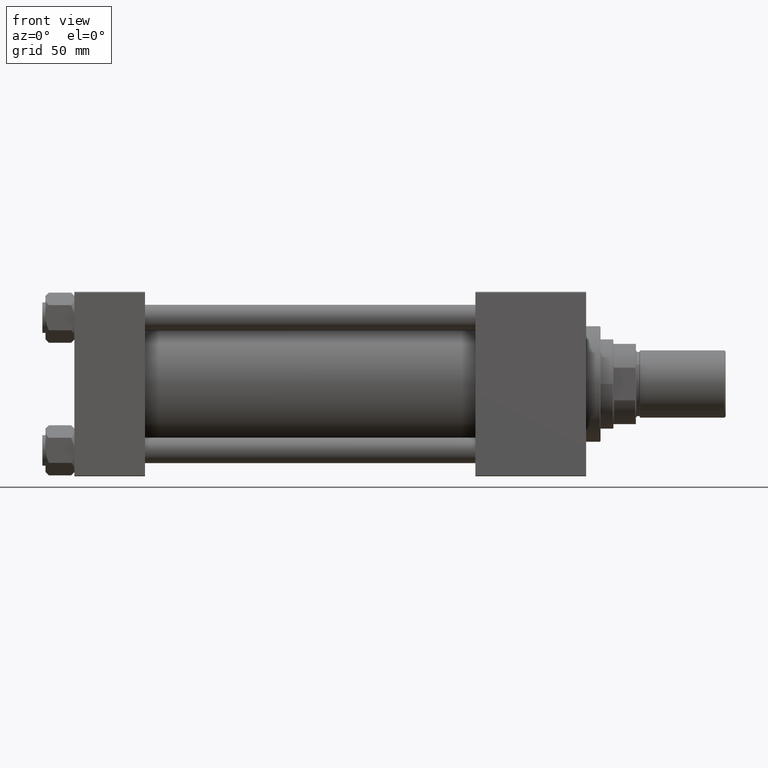
[diagram: clean part render]
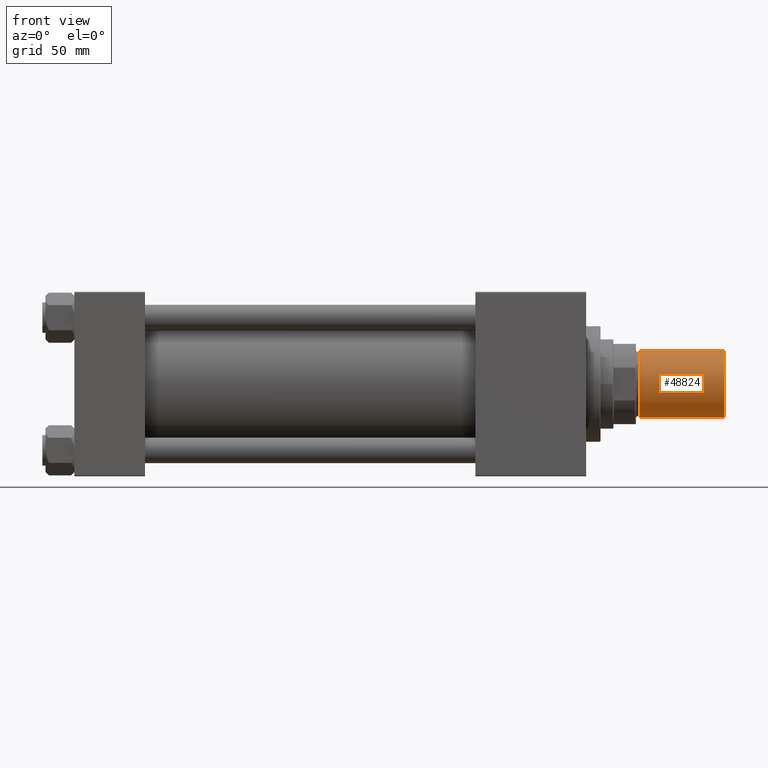
[diagram: same view with one face highlighted and labeled with its STEP entity id]
A machine part, front view. The second image highlights one B-rep face of the part: STEP entity #48824.
In plain terms, the highlighted cylindrical surface (edge-blend (fillet) strip) has radius 21 mm, axis along (1, -0, -0).
Its self-contained STEP definition (entity closure, byte-faithful):
#154 = VECTOR ( 'NONE', #14407, 1000.000000000000000 ) ;
#1760 = DIRECTION ( 'NONE',  ( -0.000000000000000000, -0.000000000000000000, 1.000000000000000000 ) ) ;
#3574 = VERTEX_POINT ( 'NONE', #41761 ) ;
#5268 = AXIS2_PLACEMENT_3D ( 'NONE', #12680, #1760, #36788 ) ;
#6102 = CARTESIAN_POINT ( 'NONE',  ( -21.00000000000000000, 0.000000000000000000, 53.50000000000000000 ) ) ;
#12098 = VERTEX_POINT ( 'NONE', #35550 ) ;
#12680 = CARTESIAN_POINT ( 'NONE',  ( 0.000000000000000000, 0.000000000000000000, 0.7999999999999882760 ) ) ;
#12931 = DIRECTION ( 'NONE',  ( -0.000000000000000000, -0.000000000000000000, -1.000000000000000000 ) ) ;
#13678 = DIRECTION ( 'NONE',  ( 1.000000000000000000, 0.000000000000000000, 0.000000000000000000 ) ) ;
#13868 = VERTEX_POINT ( 'NONE', #36928 ) ;
#14407 = DIRECTION ( 'NONE',  ( -0.000000000000000000, -0.000000000000000000, -1.000000000000000000 ) ) ;
#16495 = EDGE_LOOP ( 'NONE', ( #20687, #33558, #38868, #47381 ) ) ;
#17510 = EDGE_CURVE ( 'NONE', #12098, #25993, #43358, .T. ) ;
#18803 = LINE ( 'NONE', #6102, #154 ) ;
#20687 = ORIENTED_EDGE ( 'NONE', *, *, #17510, .F. ) ;
#24432 = AXIS2_PLACEMENT_3D ( 'NONE', #36273, #12931, #44558 ) ;
#25993 = VERTEX_POINT ( 'NONE', #32288 ) ;
#27529 = AXIS2_PLACEMENT_3D ( 'NONE', #37529, #37019, #13678 ) ;
#29779 = VECTOR ( 'NONE', #50869, 1000.000000000000000 ) ;
#32288 = CARTESIAN_POINT ( 'NONE',  ( 21.00000000000000000, 2.571758278209441661E-15, 0.7999999999999882760 ) ) ;
#32978 = EDGE_CURVE ( 'NONE', #13868, #25993, #34273, .T. ) ;
#33558 = ORIENTED_EDGE ( 'NONE', *, *, #39122, .F. ) ;
#34273 = CIRCLE ( 'NONE', #5268, 21.00000000000000000 ) ;
#34503 = EDGE_CURVE ( 'NONE', #3574, #13868, #18803, .T. ) ;
#35550 = CARTESIAN_POINT ( 'NONE',  ( 21.00000000000000000, 2.571758278209441661E-15, 53.50000000000000000 ) ) ;
#36273 = CARTESIAN_POINT ( 'NONE',  ( 0.000000000000000000, 0.000000000000000000, 53.50000000000000000 ) ) ;
#36788 = DIRECTION ( 'NONE',  ( 1.000000000000000000, 0.000000000000000000, 0.000000000000000000 ) ) ;
#36928 = CARTESIAN_POINT ( 'NONE',  ( -21.00000000000000000, 0.000000000000000000, 0.7999999999999882760 ) ) ;
#37019 = DIRECTION ( 'NONE',  ( 0.000000000000000000, 0.000000000000000000, 1.000000000000000000 ) ) ;
#37529 = CARTESIAN_POINT ( 'NONE',  ( 0.000000000000000000, 0.000000000000000000, 53.50000000000000000 ) ) ;
#38868 = ORIENTED_EDGE ( 'NONE', *, *, #34503, .T. ) ;
#39122 = EDGE_CURVE ( 'NONE', #3574, #12098, #39938, .T. ) ;
#39938 = CIRCLE ( 'NONE', #27529, 21.00000000000000000 ) ;
#41181 = FACE_OUTER_BOUND ( 'NONE', #16495, .T. ) ;
#41761 = CARTESIAN_POINT ( 'NONE',  ( -21.00000000000000000, 0.000000000000000000, 53.50000000000000000 ) ) ;
#43358 = LINE ( 'NONE', #46977, #29779 ) ;
#44558 = DIRECTION ( 'NONE',  ( -1.000000000000000000, 0.000000000000000000, 0.000000000000000000 ) ) ;
#46977 = CARTESIAN_POINT ( 'NONE',  ( 21.00000000000000000, 2.571758278209441661E-15, 53.50000000000000000 ) ) ;
#47381 = ORIENTED_EDGE ( 'NONE', *, *, #32978, .T. ) ;
#48692 = CYLINDRICAL_SURFACE ( 'NONE', #24432, 21.00000000000000000 ) ;
#48824 = ADVANCED_FACE ( 'NONE', ( #41181 ), #48692, .T. ) ;
#50869 = DIRECTION ( 'NONE',  ( -0.000000000000000000, -0.000000000000000000, -1.000000000000000000 ) ) ;